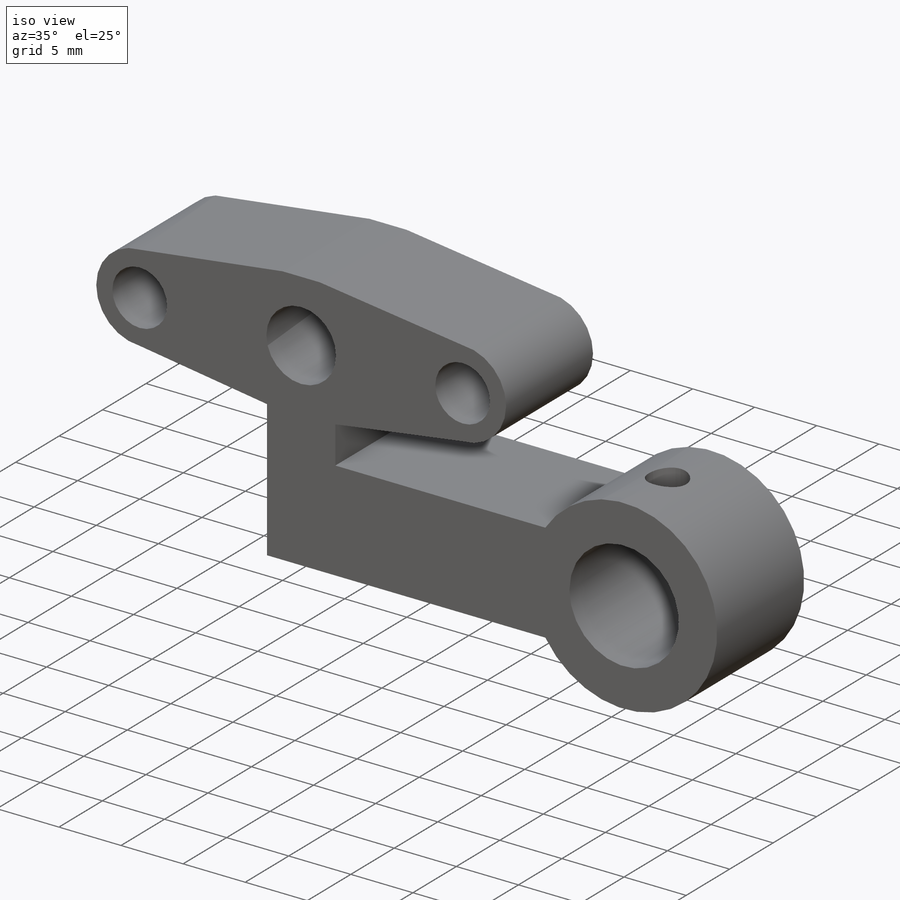
[diagram: iso view]
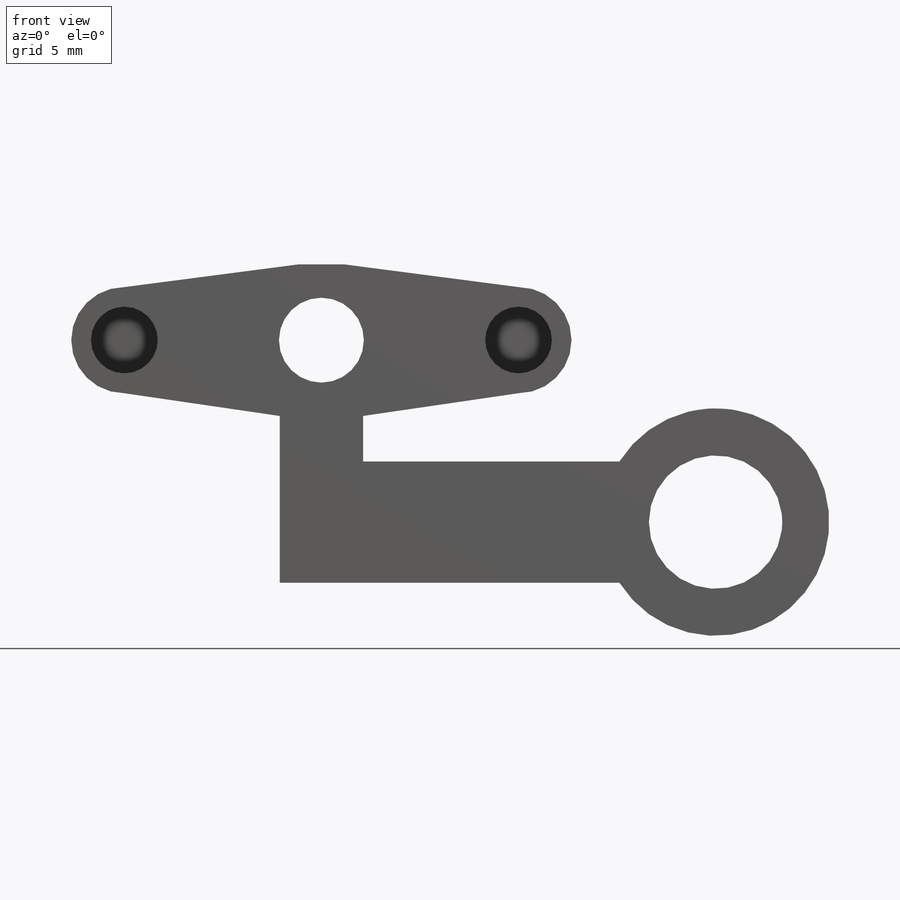
[diagram: front view]
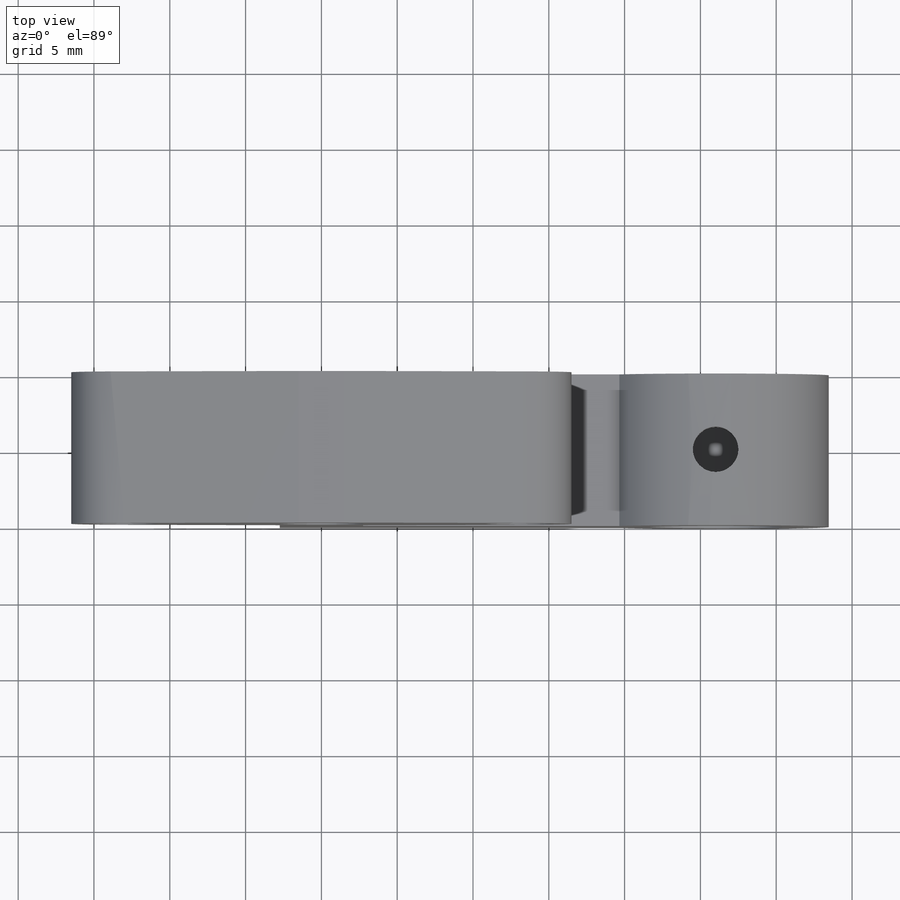
[diagram: top view]
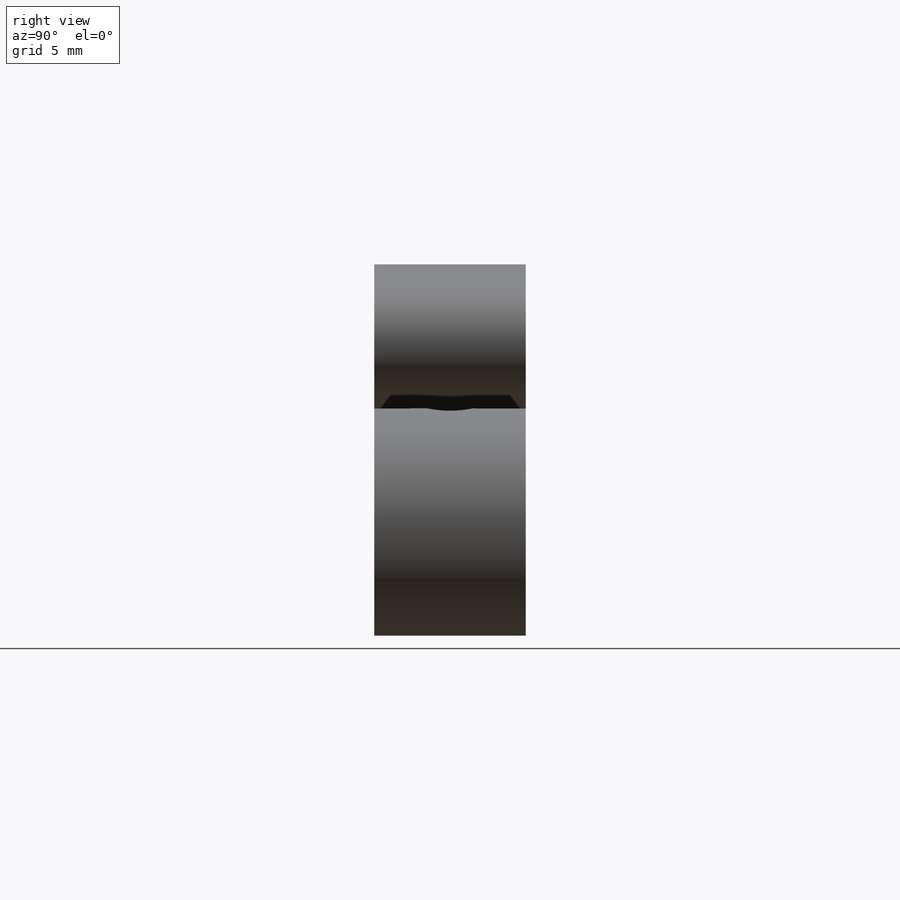
[diagram: right view]
SOLIDWORKS PART (.sldprt)
format: sldprt  version: not decoded by parser v0  size: 223,744 bytes
history: native  units: mm
features: plane x4, sketch x3, cut_extrude x2, material x1, extrude x1 (+10 scaffold rows collapsed)
feature tree (21):
  scaffold x10  (default folders/planes/origin — collapsed)
  material  "Matériau <non spécifié>"
  plane  "Plan de face"
  plane  "Plan de dessus"
  plane  "Plan de droite"
  sketch  "Esquisse1"  dims[c1.D1=5.6mm c1.D2=4.4mm c1.D6=8.8mm c1.D7=7.0mm c1.D8=10.0mm c1.D9=15.0mm c1.D3=26.0mm c1.D4=12.0mm c1.D5=13.0mm c1.D10=5.5mm c1.D11=8.0mm c1.D12=8.0mm c2.D8=5.0mm c2.D12=5.0mm c2.D13=3.0mm c2.D2=26.0mm]
  extrude  "Boss.-Extru.1"  Depth=10mm
  plane  "Plan1"
  sketch  "Esquisse2"  dims[D1=3.0mm D2=10.0mm D3=26.0mm]
  cut_extrude  "Enlèv. mat.-Extru.1"  [1 undecoded]
  sketch  "Esquisse4"  dims[D2=4.4mm D1=26.0mm]
  cut_extrude  "Enlèv. mat.-Extru.2"  Depth=9mm
decode coverage: 5 of 6 modeling features carry decoded parameters
note: 1 parameter value undecoded
note: suppression state not decoded; provenance and decode notes live in map.json
